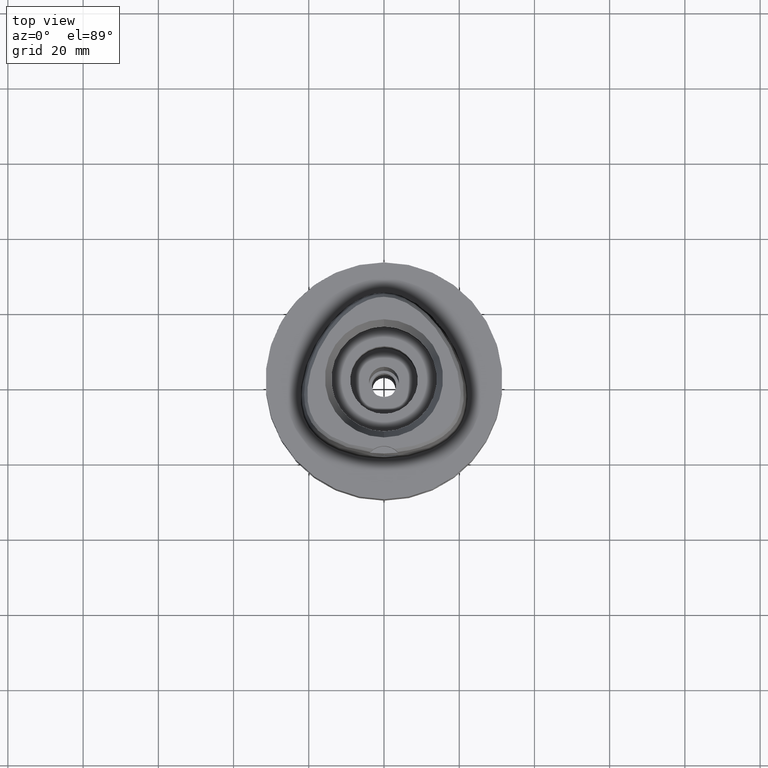
[diagram: clean part render]
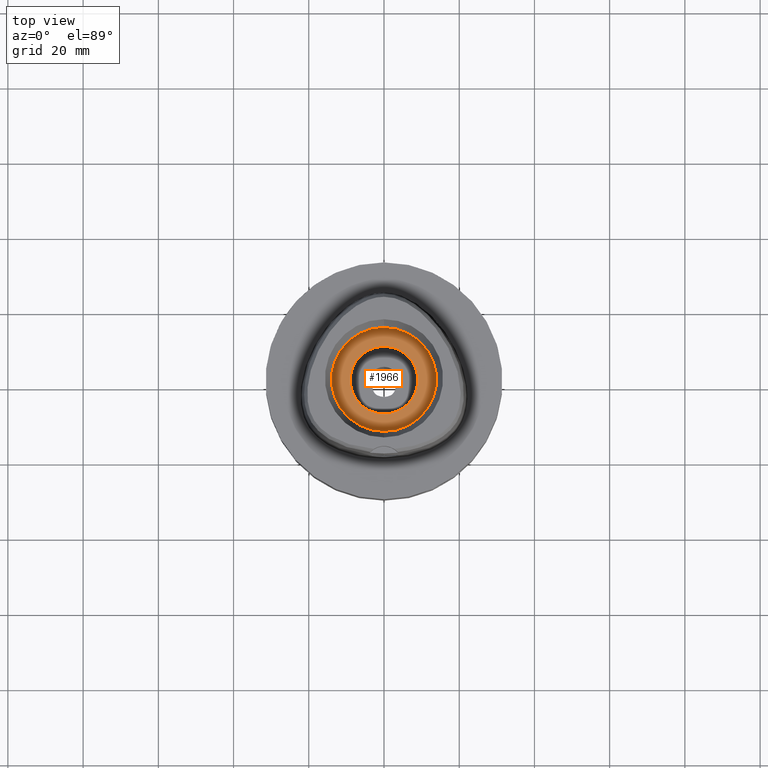
[diagram: same view with one face highlighted and labeled with its STEP entity id]
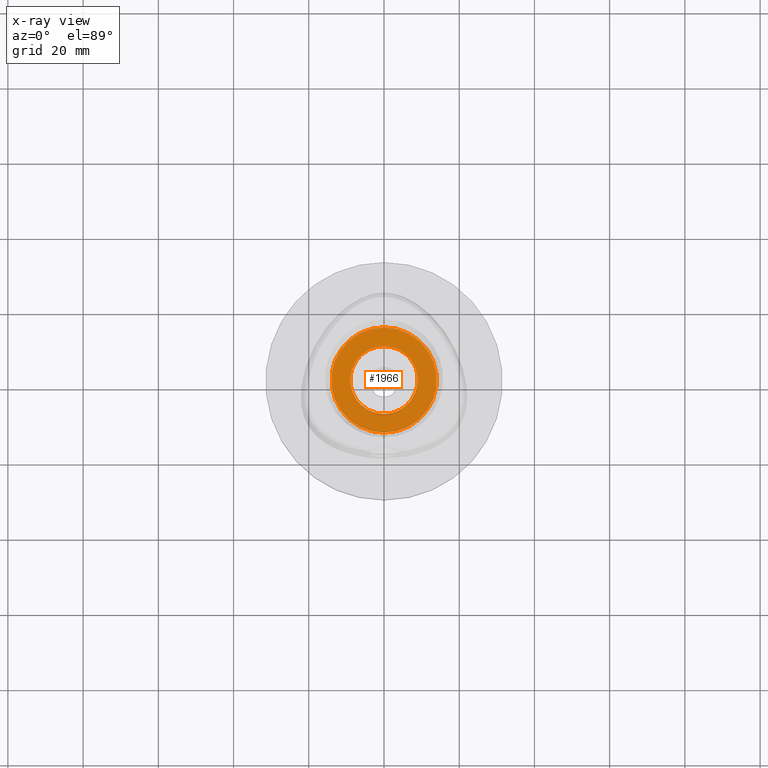
[diagram: x-ray of the same camera — body ghosted, the highlighted face saturated]
A machine part, top view. The second image highlights one B-rep face of the part: STEP entity #1966.
The next image is the same camera in x-ray: the body ghosted, the highlighted face saturated — about 0% of this face is hidden behind the body in this view.
In plain terms, the highlighted planar face has unit normal (0, 0, -1).
Its self-contained STEP definition (entity closure, byte-faithful):
#94 = CARTESIAN_POINT ( 'NONE',  ( 0.0000000000000000000, 0.0000000000000000000, 11.00000000000000000 ) ) ;
#160 = ORIENTED_EDGE ( 'NONE', *, *, #3456, .F. ) ;
#244 = AXIS2_PLACEMENT_3D ( 'NONE', #407, #757, #3850 ) ;
#308 = CARTESIAN_POINT ( 'NONE',  ( 0.0000000000000000000, 14.00000000000000000, 11.00000000000000000 ) ) ;
#365 = FACE_BOUND ( 'NONE', #2672, .T. ) ;
#407 = CARTESIAN_POINT ( 'NONE',  ( 0.0000000000000000000, 0.0000000000000000000, 11.00000000000000000 ) ) ;
#508 = AXIS2_PLACEMENT_3D ( 'NONE', #94, #1940, #4607 ) ;
#515 = EDGE_CURVE ( 'NONE', #1581, #4597, #2650, .T. ) ;
#739 = FACE_OUTER_BOUND ( 'NONE', #978, .T. ) ;
#757 = DIRECTION ( 'NONE',  ( 0.0000000000000000000, 0.0000000000000000000, 1.000000000000000000 ) ) ;
#978 = EDGE_LOOP ( 'NONE', ( #4314, #3604 ) ) ;
#1122 = AXIS2_PLACEMENT_3D ( 'NONE', #4103, #2947, #2209 ) ;
#1168 = VERTEX_POINT ( 'NONE', #4549 ) ;
#1381 = DIRECTION ( 'NONE',  ( 0.0000000000000000000, 1.000000000000000000, 0.0000000000000000000 ) ) ;
#1425 = CARTESIAN_POINT ( 'NONE',  ( 0.0000000000000000000, 0.0000000000000000000, 11.00000000000000000 ) ) ;
#1484 = DIRECTION ( 'NONE',  ( 0.0000000000000000000, 0.0000000000000000000, -1.000000000000000000 ) ) ;
#1581 = VERTEX_POINT ( 'NONE', #3531 ) ;
#1918 = AXIS2_PLACEMENT_3D ( 'NONE', #1425, #4441, #1381 ) ;
#1920 = CIRCLE ( 'NONE', #244, 9.000000000000000000 ) ;
#1940 = DIRECTION ( 'NONE',  ( 0.0000000000000000000, 0.0000000000000000000, 1.000000000000000000 ) ) ;
#1966 = ADVANCED_FACE ( 'NONE', ( #739, #365 ), #4894, .F. ) ;
#1984 = VERTEX_POINT ( 'NONE', #308 ) ;
#2169 = CIRCLE ( 'NONE', #4215, 14.00000000000000000 ) ;
#2209 = DIRECTION ( 'NONE',  ( 0.0000000000000000000, -1.000000000000000000, 0.0000000000000000000 ) ) ;
#2622 = DIRECTION ( 'NONE',  ( 0.0000000000000000000, -1.000000000000000000, 0.0000000000000000000 ) ) ;
#2650 = CIRCLE ( 'NONE', #508, 9.000000000000000000 ) ;
#2672 = EDGE_LOOP ( 'NONE', ( #160, #4646 ) ) ;
#2728 = EDGE_CURVE ( 'NONE', #1984, #1168, #4444, .T. ) ;
#2947 = DIRECTION ( 'NONE',  ( 0.0000000000000000000, 0.0000000000000000000, -1.000000000000000000 ) ) ;
#3456 = EDGE_CURVE ( 'NONE', #4597, #1581, #1920, .T. ) ;
#3531 = CARTESIAN_POINT ( 'NONE',  ( 0.0000000000000000000, 9.000000000000000000, 11.00000000000000000 ) ) ;
#3604 = ORIENTED_EDGE ( 'NONE', *, *, #2728, .F. ) ;
#3850 = DIRECTION ( 'NONE',  ( 0.0000000000000000000, -1.000000000000000000, 0.0000000000000000000 ) ) ;
#3852 = CARTESIAN_POINT ( 'NONE',  ( 0.0000000000000000000, -9.000000000000000000, 11.00000000000000000 ) ) ;
#4103 = CARTESIAN_POINT ( 'NONE',  ( 0.0000000000000000000, 0.0000000000000000000, 11.00000000000000000 ) ) ;
#4215 = AXIS2_PLACEMENT_3D ( 'NONE', #4870, #1484, #2622 ) ;
#4314 = ORIENTED_EDGE ( 'NONE', *, *, #4406, .F. ) ;
#4406 = EDGE_CURVE ( 'NONE', #1168, #1984, #2169, .T. ) ;
#4441 = DIRECTION ( 'NONE',  ( 0.0000000000000000000, 0.0000000000000000000, -1.000000000000000000 ) ) ;
#4444 = CIRCLE ( 'NONE', #1918, 14.00000000000000000 ) ;
#4549 = CARTESIAN_POINT ( 'NONE',  ( 0.0000000000000000000, -14.00000000000000000, 11.00000000000000000 ) ) ;
#4597 = VERTEX_POINT ( 'NONE', #3852 ) ;
#4607 = DIRECTION ( 'NONE',  ( 0.0000000000000000000, 1.000000000000000000, 0.0000000000000000000 ) ) ;
#4646 = ORIENTED_EDGE ( 'NONE', *, *, #515, .F. ) ;
#4870 = CARTESIAN_POINT ( 'NONE',  ( 0.0000000000000000000, 0.0000000000000000000, 11.00000000000000000 ) ) ;
#4894 = PLANE ( 'NONE',  #1122 ) ;